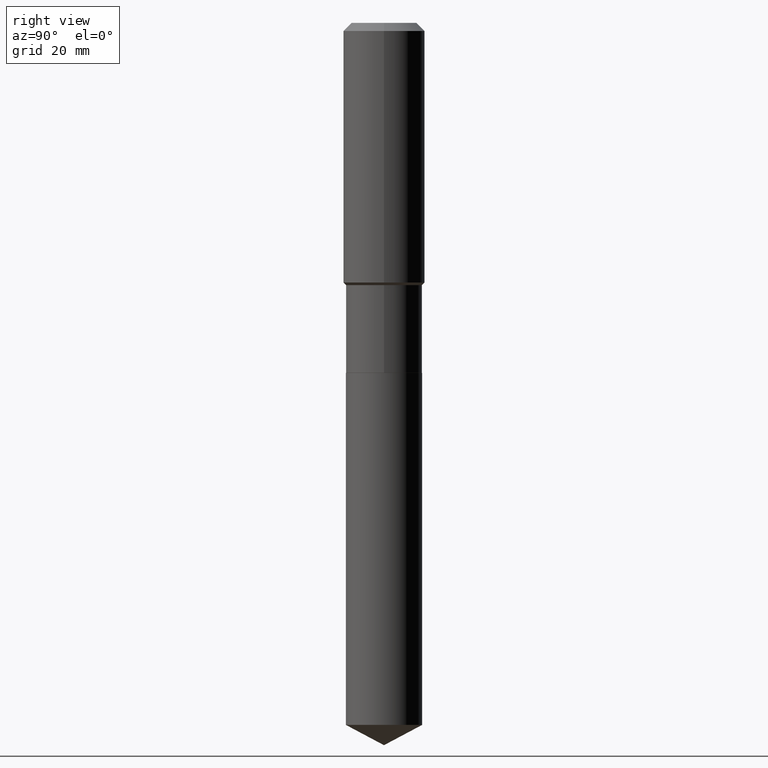
[diagram: clean part render]
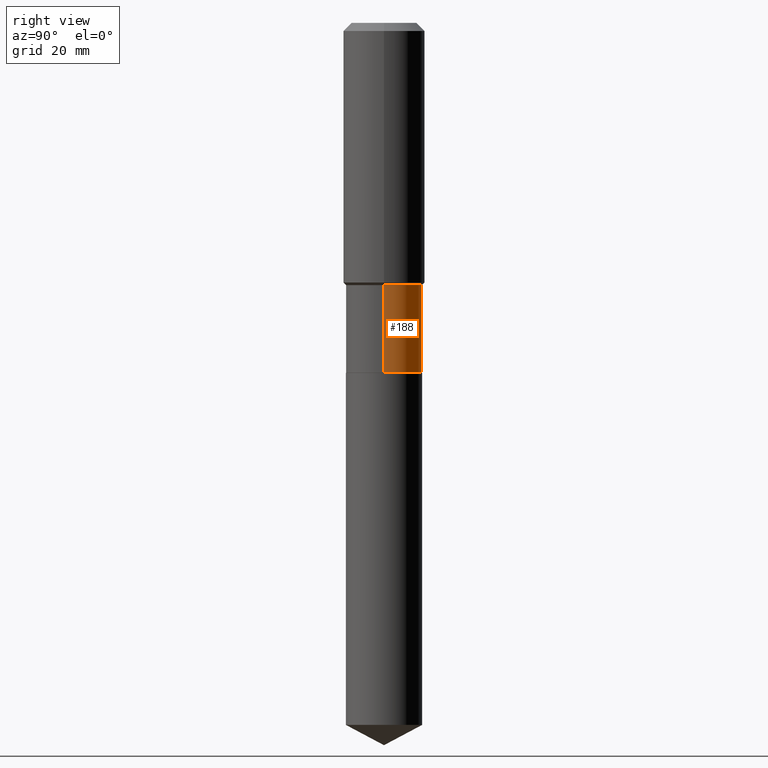
[diagram: same view with one face highlighted and labeled with its STEP entity id]
A machine part, right view. The second image highlights one B-rep face of the part: STEP entity #188.
In plain terms, the highlighted cylindrical surface (partial cylindrical patch) has radius 6.5481 mm, axis along (-0, 0, 1).
Its self-contained STEP definition (entity closure, byte-faithful):
#2 = ORIENTED_EDGE ( 'NONE', *, *, #311, .F. ) ;
#8 = CARTESIAN_POINT ( 'NONE',  ( -0.2577999999999999181, 1.831779172789537697E-15, -1.268101466267714406E-29 ) ) ;
#17 = CARTESIAN_POINT ( 'NONE',  ( 4.335082552724389788E-29, -6.189348969367241722E-15, -1.772699999999999276 ) ) ;
#39 = DIRECTION ( 'NONE',  ( -2.445468806185136877E-29, 3.491481338843145188E-15, 1.000000000000000000 ) ) ;
#44 = CARTESIAN_POINT ( 'NONE',  ( 0.2577999999999999181, -1.800207778307519167E-15, 1.257078372800191925E-29 ) ) ;
#46 = CARTESIAN_POINT ( 'NONE',  ( 0.2577999999999999181, -7.989556747674760100E-15, -1.772699999999999276 ) ) ;
#53 = CIRCLE ( 'NONE', #448, 0.2577999999999999181 ) ;
#67 = DIRECTION ( 'NONE',  ( 1.000000000000000000, -6.982962677686264344E-15, 0.000000000000000000 ) ) ;
#69 = DIRECTION ( 'NONE',  ( -2.445468806185136597E-29, 3.491481338843145583E-15, 1.000000000000000000 ) ) ;
#79 = CYLINDRICAL_SURFACE ( 'NONE', #212, 0.2577999999999999181 ) ;
#90 = CARTESIAN_POINT ( 'NONE',  ( -0.2578000000000000291, -5.391746569143044548E-15, -2.365099999999999536 ) ) ;
#97 = VERTEX_POINT ( 'NONE', #244 ) ;
#117 = VECTOR ( 'NONE', #39, 39.37007874015748143 ) ;
#135 = VERTEX_POINT ( 'NONE', #46 ) ;
#170 = EDGE_CURVE ( 'NONE', #237, #397, #180, .T. ) ;
#177 = EDGE_CURVE ( 'NONE', #397, #97, #300, .T. ) ;
#180 = CIRCLE ( 'NONE', #261, 0.2577999999999999736 ) ;
#188 = ADVANCED_FACE ( 'NONE', ( #192 ), #79, .T. ) ;
#192 = FACE_OUTER_BOUND ( 'NONE', #481, .T. ) ;
#212 = AXIS2_PLACEMENT_3D ( 'NONE', #233, #69, #386 ) ;
#230 = LINE ( 'NONE', #44, #294 ) ;
#233 = CARTESIAN_POINT ( 'NONE',  ( 0.000000000000000000, 0.000000000000000000, 0.000000000000000000 ) ) ;
#237 = VERTEX_POINT ( 'NONE', #271 ) ;
#244 = CARTESIAN_POINT ( 'NONE',  ( -0.2577999999999999181, -5.391746569143044548E-15, -1.772699999999999276 ) ) ;
#261 = AXIS2_PLACEMENT_3D ( 'NONE', #411, #267, #67 ) ;
#267 = DIRECTION ( 'NONE',  ( -2.445468806185136597E-29, 3.491481338843145583E-15, 1.000000000000000000 ) ) ;
#271 = CARTESIAN_POINT ( 'NONE',  ( 0.2577999999999999736, -1.005791029280544115E-14, -2.365099999999999536 ) ) ;
#284 = EDGE_CURVE ( 'NONE', #237, #135, #230, .T. ) ;
#294 = VECTOR ( 'NONE', #384, 39.37007874015748143 ) ;
#300 = LINE ( 'NONE', #8, #117 ) ;
#311 = EDGE_CURVE ( 'NONE', #135, #97, #53, .T. ) ;
#340 = ORIENTED_EDGE ( 'NONE', *, *, #177, .T. ) ;
#374 = ORIENTED_EDGE ( 'NONE', *, *, #170, .T. ) ;
#384 = DIRECTION ( 'NONE',  ( -2.445468806185136877E-29, 3.491481338843145188E-15, 1.000000000000000000 ) ) ;
#386 = DIRECTION ( 'NONE',  ( 1.000000000000000000, -6.982962677686267499E-15, 4.876176775795936353E-29 ) ) ;
#397 = VERTEX_POINT ( 'NONE', #90 ) ;
#411 = CARTESIAN_POINT ( 'NONE',  ( 5.783778273508465535E-29, -8.257702514497921981E-15, -2.365099999999999536 ) ) ;
#417 = ORIENTED_EDGE ( 'NONE', *, *, #284, .F. ) ;
#448 = AXIS2_PLACEMENT_3D ( 'NONE', #17, #466, #471 ) ;
#466 = DIRECTION ( 'NONE',  ( -2.445468806185136597E-29, 3.491481338843145583E-15, 1.000000000000000000 ) ) ;
#471 = DIRECTION ( 'NONE',  ( 1.000000000000000000, -6.982962677686265922E-15, 0.000000000000000000 ) ) ;
#481 = EDGE_LOOP ( 'NONE', ( #374, #340, #2, #417 ) ) ;